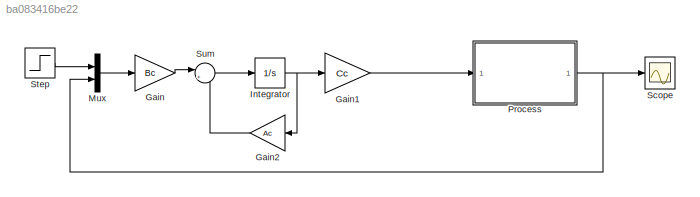
MODEL slx_ba083416be22
KIND model
CONFIG AbsTol = auto
CONFIG EnableMultiTasking = off
CONFIG FixedStep = auto
CONFIG MaxStep = auto
CONFIG MinStep = auto
CONFIG RelTol = 1e-3
CONFIG SampleTimeConstraint = Unconstrained
CONFIG SolverName = VariableStepAuto
CONFIG StartTime = 0.0
CONFIG StopTime = 10.0
BLOCK [Gain] Gain
  Gain = Bc
  Multiplication = Matrix(K*u)
BLOCK [Gain] Gain1
  Gain = Cc
  Multiplication = Matrix(K*u)
BLOCK [Gain] Gain2
  Gain = Ac
  Multiplication = Matrix(K*u)
  NameLocation = top
BLOCK [Integrator] Integrator
BLOCK [Mux] Mux
  DisplayOption = bar
  Inputs = 2
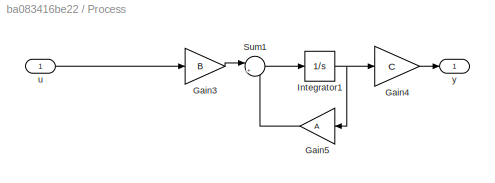
BLOCK [SubSystem] Process
BLOCK [Gain] Process/Gain3
  Gain = B
  Multiplication = Matrix(K*u)
BLOCK [Gain] Process/Gain4
  Gain = C
  Multiplication = Matrix(K*u)
BLOCK [Gain] Process/Gain5
  Gain = A
  Multiplication = Matrix(K*u)
  NameLocation = top
BLOCK [Integrator] Process/Integrator1
BLOCK [Sum] Process/Sum1
  Inputs = |++
BLOCK [Inport] Process/u
BLOCK [Outport] Process/y
BLOCK [Scope] Scope
  Floating = off
  NumInputPorts = 1
  ScopeSpecificationString = Simulink.scopes.TimeScopeBlockCfg('CurrentConfiguration', extmgr.ConfigurationSet(extmgr.Configuration('Core','General UI',true),extmgr.Configuration('Core','Source UI',true),extmgr.Configuration('Sources','WiredSimulink',true),extmgr.Configuration('Visuals','Time Domain',true,'SerializedDisplays',{struct('MinYLimReal','-10','MaxYLimReal','10','YLabelReal','','MinYLimMag','0','MaxYLimMag','10','Le...<+836ch>
BLOCK [Step] Step
  SampleTime = 0
BLOCK [Sum] Sum
  Inputs = |++
LINE Gain1:1 -> Process:1
LINE Gain2:1 -> Sum:2
LINE Gain:1 -> Sum:1
NET Integrator:1 -> Gain1:1, Gain2:1
LINE Mux:1 -> Gain:1
LINE Process/Gain3:1 -> Process/Sum1:1
LINE Process/Gain4:1 -> Process/y:1
LINE Process/Gain5:1 -> Process/Sum1:2
NET Process/Integrator1:1 -> Process/Gain4:1, Process/Gain5:1
LINE Process/Sum1:1 -> Process/Integrator1:1
LINE Process/u:1 -> Process/Gain3:1
NET Process:1 -> Mux:2, Scope:1
LINE Step:1 -> Mux:1
LINE Sum:1 -> Integrator:1
note: NET lines group one-source signal fan-out (src -> all destinations, sorted); 1:1 wires keep LINE
